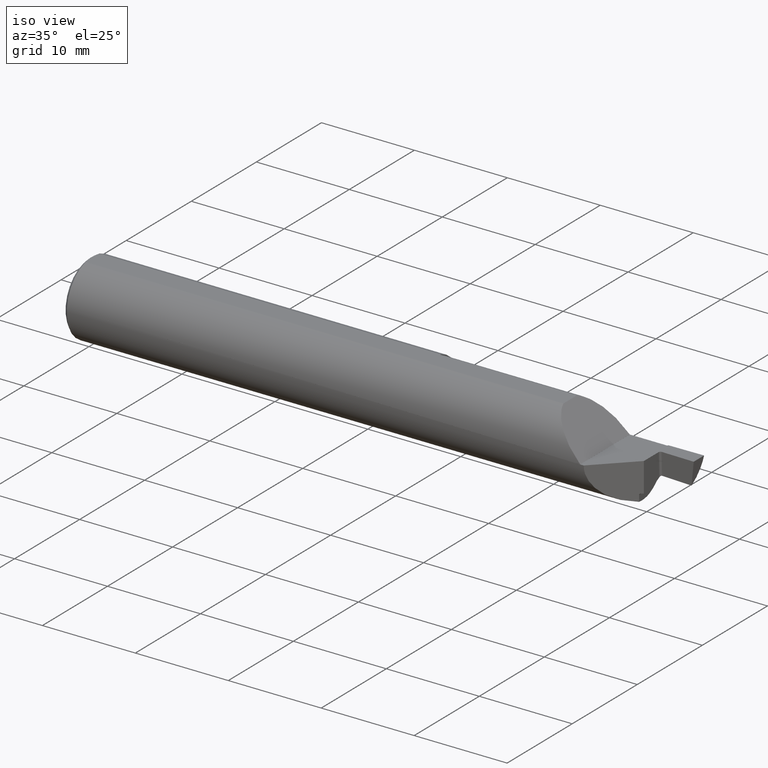
[diagram: clean part render]
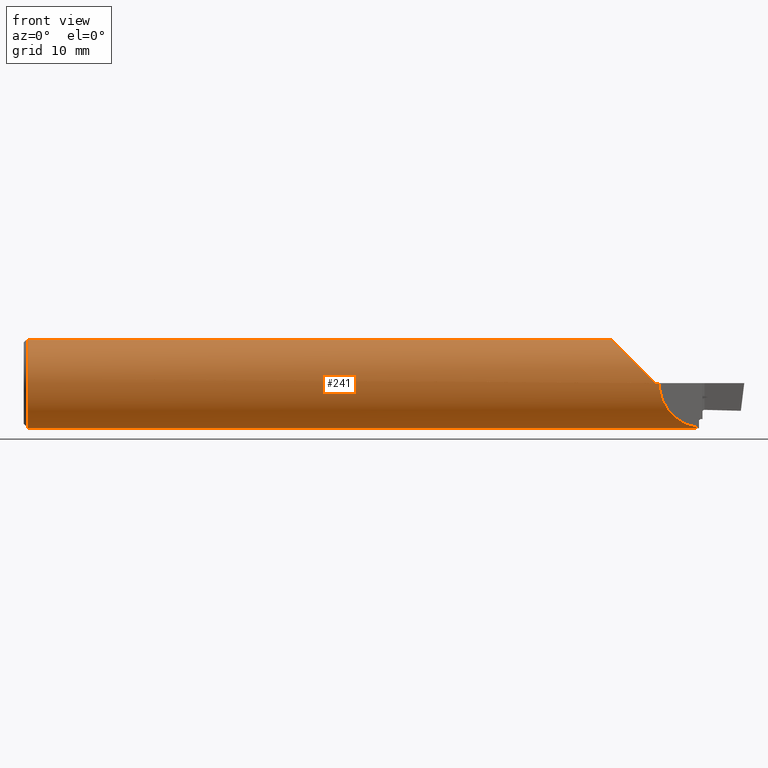
[diagram: tour spotlight — one face highlighted and labeled with its STEP entity id]
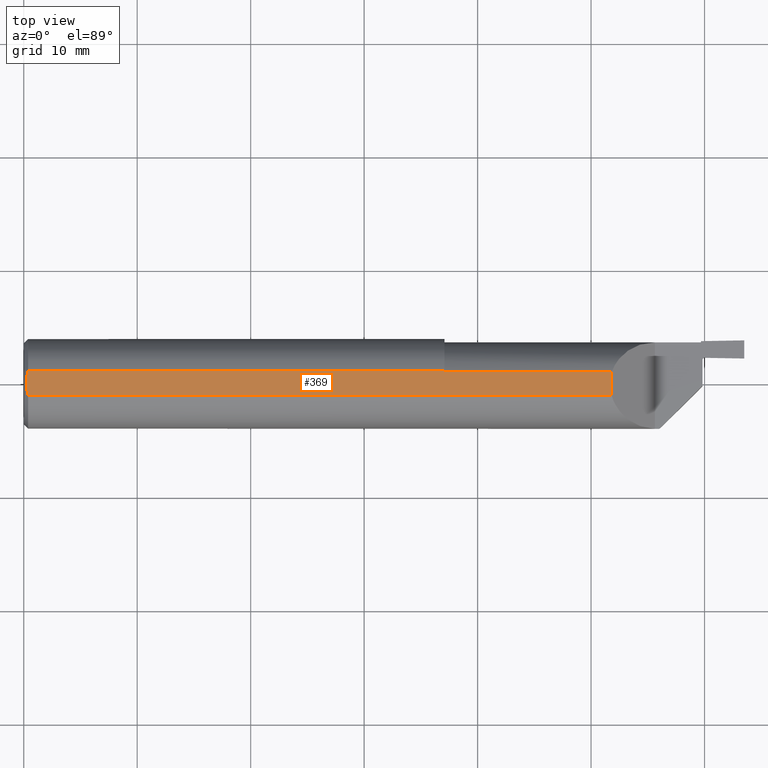
[diagram: tour spotlight — one face highlighted and labeled with its STEP entity id]
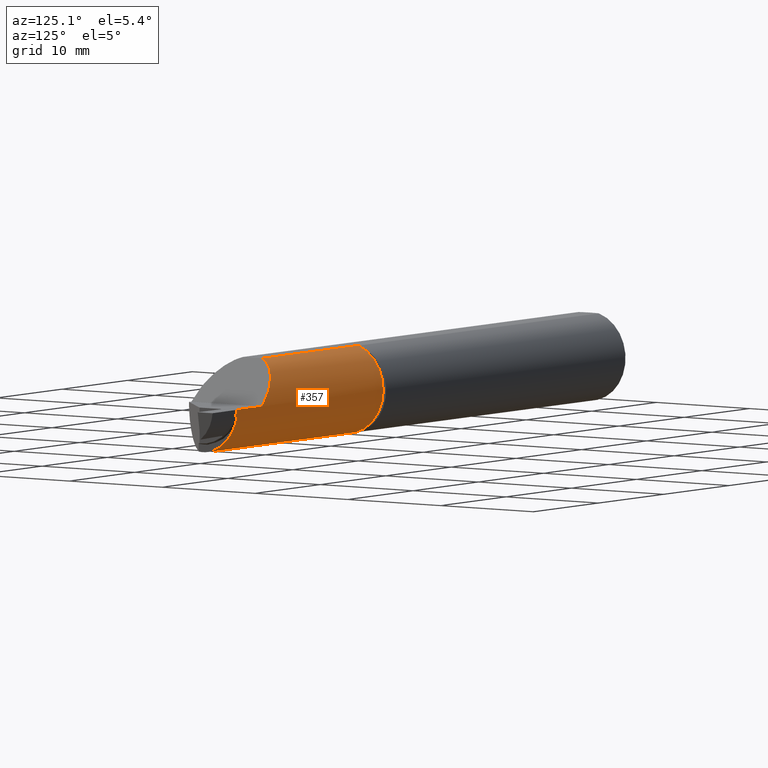
[diagram: tour spotlight — one face highlighted and labeled with its STEP entity id]
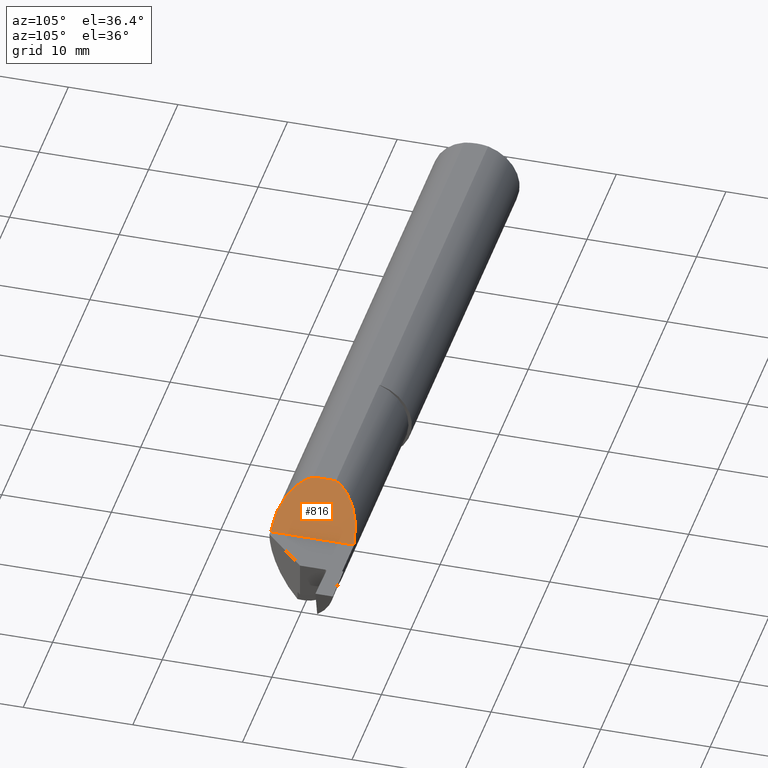
[diagram: tour spotlight — one face highlighted and labeled with its STEP entity id]
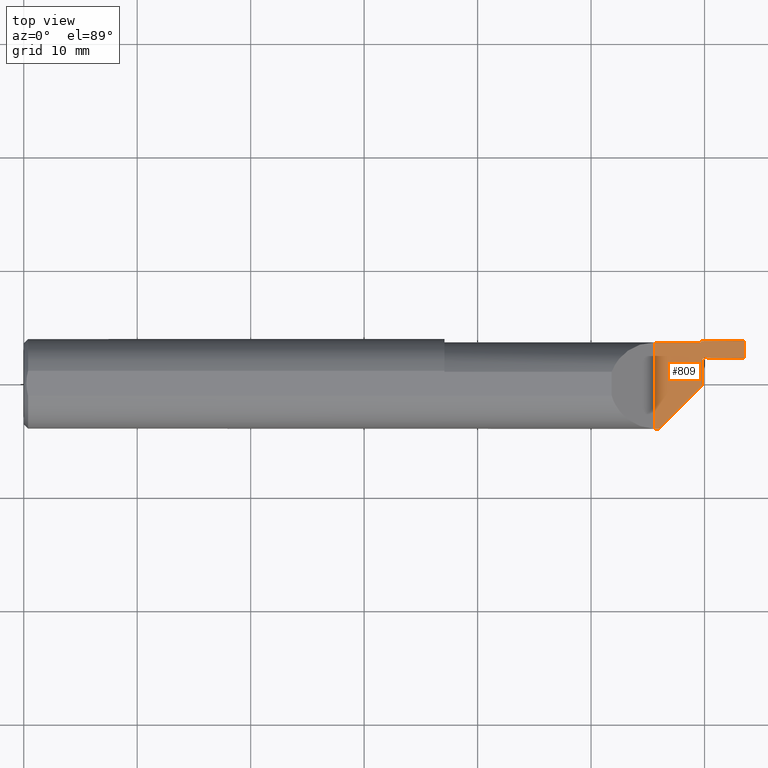
[diagram: tour spotlight — one face highlighted and labeled with its STEP entity id]
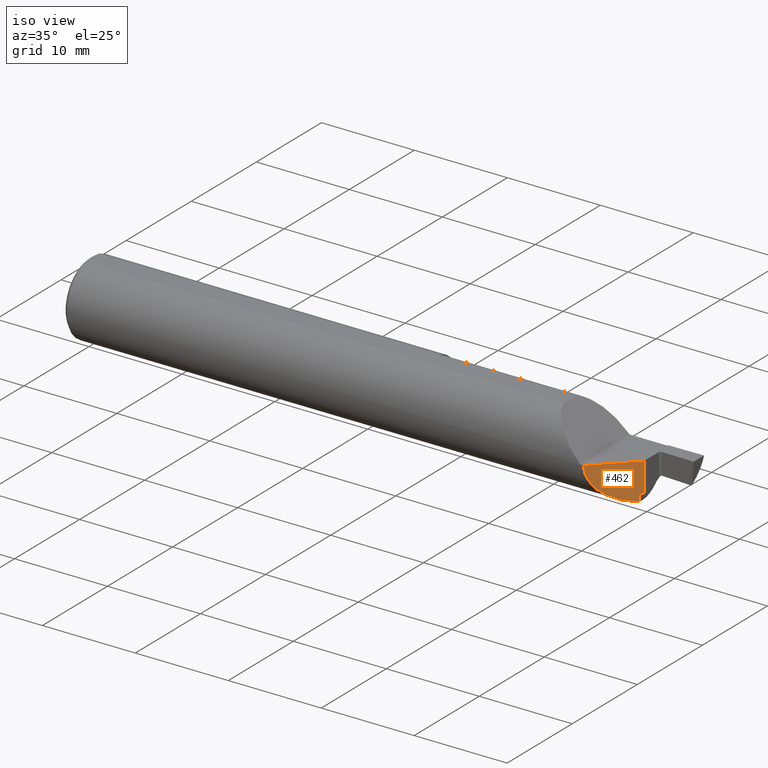
[diagram: tour spotlight — one face highlighted and labeled with its STEP entity id]
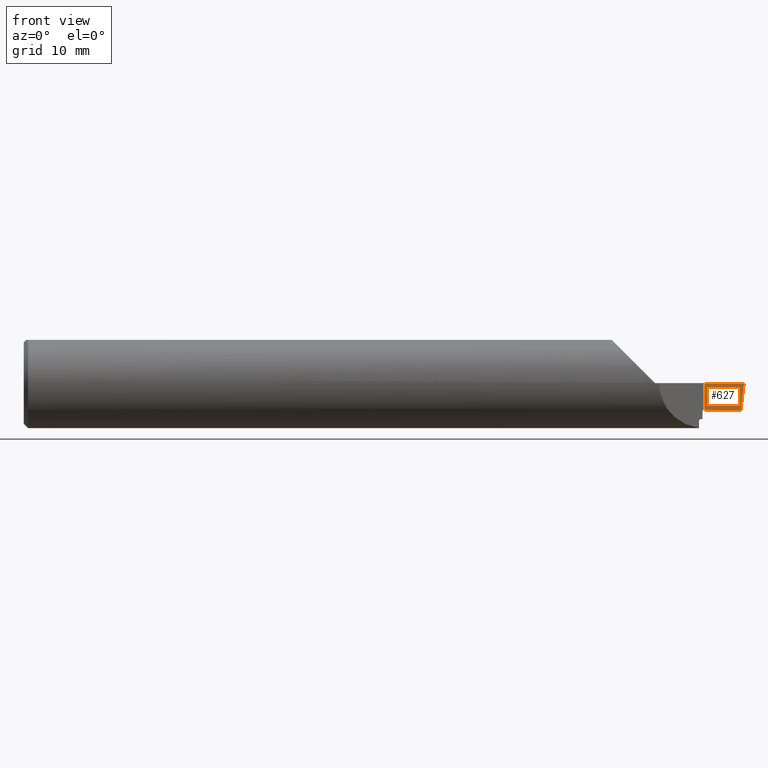
[diagram: tour spotlight — one face highlighted and labeled with its STEP entity id]
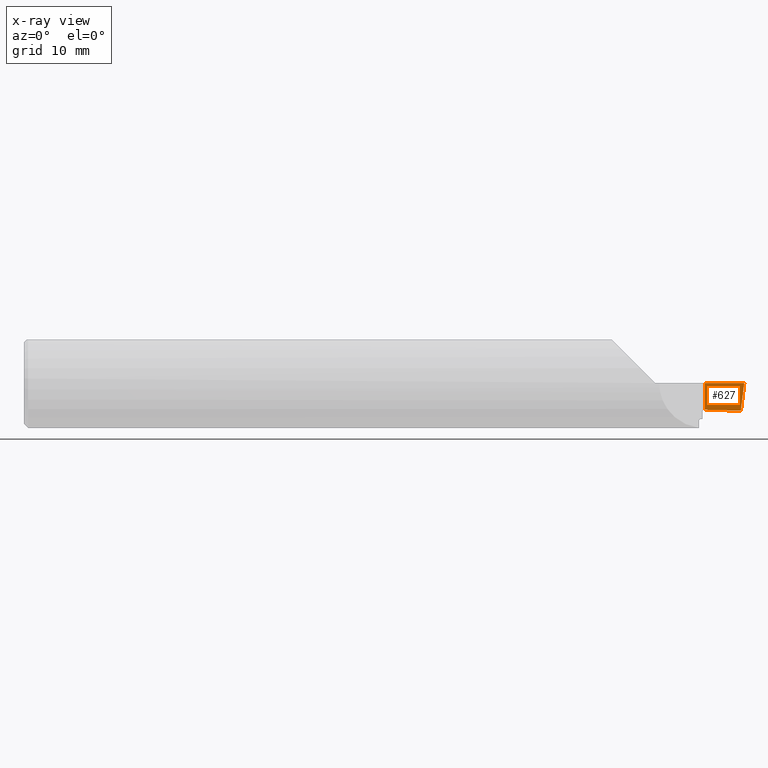
[diagram: x-ray of the same camera — body ghosted, this tour face saturated]
A machine part: a face-by-face anatomy tour. The part has 22 B-rep faces; the first image is the clean iso view, then the 7 largest visible faces are spotlighted one at a time (largest first), each with its STEP entity span.

Face 1 — front view, entity #241. In plain terms, the highlighted cylindrical surface (partial cylindrical patch) has radius 3.9649 mm, axis along (-1, -0, -0).
Definition (entity closure, byte-faithful):
#2 = DIRECTION ( 'NONE',  ( 0.000000000000000000, 0.000000000000000000, -1.000000000000000000 ) ) ;
#14 = ORIENTED_EDGE ( 'NONE', *, *, #764, .T. ) ;
#27 = DIRECTION ( 'NONE',  ( -1.000000000000000000, -0.000000000000000000, -0.000000000000000000 ) ) ;
#29 = VERTEX_POINT ( 'NONE', #250 ) ;
#33 = CARTESIAN_POINT ( 'NONE',  ( 2.342443959369012507, 0.01468936267546636261, -0.1562754114998405885 ) ) ;
#37 = EDGE_CURVE ( 'NONE', #340, #82, #560, .T. ) ;
#43 = CARTESIAN_POINT ( 'NONE',  ( 2.342162489801669967, 0.03081474338877098623, -0.1530283032314129488 ) ) ;
#45 = CARTESIAN_POINT ( 'NONE',  ( 2.343016020190010540, -0.01808397980998952687, -0.1550489589588781580 ) ) ;
#46 = CARTESIAN_POINT ( 'NONE',  ( 0.000000000000000000, 0.04286257108480545641, 0.1500999999999999834 ) ) ;
#58 = VECTOR ( 'NONE', #753, 39.37007874015748143 ) ;
#65 = VERTEX_POINT ( 'NONE', #189 ) ;
#73 = VECTOR ( 'NONE', #274, 39.37007874015748143 ) ;
#82 = VERTEX_POINT ( 'NONE', #308 ) ;
#83 = EDGE_CURVE ( 'NONE', #432, #65, #367, .T. ) ;
#95 = DIRECTION ( 'NONE',  ( 1.000000000000000000, -4.076669232118371430E-17, 0.000000000000000000 ) ) ;
#104 = EDGE_LOOP ( 'NONE', ( #524, #14, #438, #758, #146, #723, #555, #162, #290, #701, #200 ) ) ;
#115 = CARTESIAN_POINT ( 'NONE',  ( 0.01499999999999970281, 0.000000000000000000, -0.1560999999999999888 ) ) ;
#128 = CARTESIAN_POINT ( 'NONE',  ( 2.189999999999999947, -0.1560999679692472164, 9.999999999982123341E-05 ) ) ;
#144 = VECTOR ( 'NONE', #687, 39.37007874015748143 ) ;
#146 = ORIENTED_EDGE ( 'NONE', *, *, #83, .F. ) ;
#150 = EDGE_CURVE ( 'NONE', #29, #660, #155, .T. ) ;
#152 = CARTESIAN_POINT ( 'NONE',  ( 2.343016020190010540, -0.01808397980998952687, -0.1550489589588781580 ) ) ;
#155 = CIRCLE ( 'NONE', #811, 0.1560999999999999888 ) ;
#162 = ORIENTED_EDGE ( 'NONE', *, *, #286, .T. ) ;
#172 = CARTESIAN_POINT ( 'NONE',  ( 2.342162489801669967, 0.03081474338877098623, -0.1530283032314129488 ) ) ;
#189 = CARTESIAN_POINT ( 'NONE',  ( 2.189999999999999947, -0.1560999999999999888, 0.000000000000000000 ) ) ;
#192 = AXIS2_PLACEMENT_3D ( 'NONE', #577, #761, #435 ) ;
#200 = ORIENTED_EDGE ( 'NONE', *, *, #150, .F. ) ;
#203 = CARTESIAN_POINT ( 'NONE',  ( 2.260341737083758851, -0.1007582629162410287, -0.1454063268732586067 ) ) ;
#209 = VERTEX_POINT ( 'NONE', #332 ) ;
#213 = EDGE_CURVE ( 'NONE', #333, #514, #412, .T. ) ;
#220 = DIRECTION ( 'NONE',  ( 0.000000000000000000, 0.000000000000000000, 1.000000000000000000 ) ) ;
#236 = CARTESIAN_POINT ( 'NONE',  ( 2.117630523791210084, -0.1560536069884282118, 0.07246947620879010121 ) ) ;
#241 = ADVANCED_FACE ( 'NONE', ( #728 ), #343, .T. ) ;
#243 = VERTEX_POINT ( 'NONE', #543 ) ;
#250 = CARTESIAN_POINT ( 'NONE',  ( 1.460000000000000187, 0.03081474338883832820, -0.1530283032313958513 ) ) ;
#251 = EDGE_CURVE ( 'NONE', #82, #660, #418, .T. ) ;
#270 = CARTESIAN_POINT ( 'NONE',  ( 2.204999999999999627, -0.1560999999999999888, 0.000000000000000000 ) ) ;
#274 = DIRECTION ( 'NONE',  ( -1.000000000000000000, -0.000000000000000000, -0.000000000000000000 ) ) ;
#281 = VERTEX_POINT ( 'NONE', #43 ) ;
#286 = EDGE_CURVE ( 'NONE', #209, #340, #750, .T. ) ;
#290 = ORIENTED_EDGE ( 'NONE', *, *, #37, .T. ) ;
#298 = DIRECTION ( 'NONE',  ( 0.000000000000000000, 0.000000000000000000, -1.000000000000000000 ) ) ;
#308 = CARTESIAN_POINT ( 'NONE',  ( 0.01499999999999970281, 0.04286257108480545641, 0.1500999999999999834 ) ) ;
#332 = CARTESIAN_POINT ( 'NONE',  ( 0.01499999999999953107, -0.04286257108480568540, 0.1500999999999999834 ) ) ;
#333 = VERTEX_POINT ( 'NONE', #676 ) ;
#335 = CARTESIAN_POINT ( 'NONE',  ( 1.460000000000000187, 0.04286257108480545641, 0.1500999999999999834 ) ) ;
#340 = VERTEX_POINT ( 'NONE', #115 ) ;
#343 = CYLINDRICAL_SURFACE ( 'NONE', #785, 0.1560999999999999888 ) ;
#347 = DIRECTION ( 'NONE',  ( 0.000000000000000000, 1.000000000000000000, 0.000000000000000000 ) ) ;
#359 = DIRECTION ( 'NONE',  ( 1.000000000000000000, 0.000000000000000000, 0.000000000000000000 ) ) ;
#363 = CARTESIAN_POINT ( 'NONE',  ( 2.189999999999999947, -0.1560999679692472164, 9.999999999982123341E-05 ) ) ;
#367 = CIRCLE ( 'NONE', #705, 0.1560999999999999888 ) ;
#381 = EDGE_CURVE ( 'NONE', #432, #243, #670, .T. ) ;
#382 = LINE ( 'NONE', #709, #775 ) ;
#393 = AXIS2_PLACEMENT_3D ( 'NONE', #491, #359, #298 ) ;
#412 =( BOUNDED_CURVE ( )  B_SPLINE_CURVE ( 3, ( #152, #203, #786, #461 ),
 .UNSPECIFIED., .F., .F. ) 
 B_SPLINE_CURVE_WITH_KNOTS ( ( 4, 4 ),
 ( 4.828498376150184512, 6.283185307179586232 ),
 .UNSPECIFIED. ) 
 CURVE ( )  GEOMETRIC_REPRESENTATION_ITEM ( )  RATIONAL_B_SPLINE_CURVE ( ( 1.000000000000000000, 0.8312955553546947929, 0.8312955553546947929, 1.000000000000000000 ) ) 
 REPRESENTATION_ITEM ( '' )  );
#418 = LINE ( 'NONE', #46, #58 ) ;
#432 = VERTEX_POINT ( 'NONE', #128 ) ;
#434 = EDGE_CURVE ( 'NONE', #281, #29, #382, .T. ) ;
#435 = DIRECTION ( 'NONE',  ( 0.000000000000000000, 0.000000000000000000, -1.000000000000000000 ) ) ;
#438 = ORIENTED_EDGE ( 'NONE', *, *, #213, .T. ) ;
#461 = CARTESIAN_POINT ( 'NONE',  ( 2.204999999999999627, -0.1560999999999999888, 0.000000000000000000 ) ) ;
#491 = CARTESIAN_POINT ( 'NONE',  ( 0.01499999999999970281, 0.000000000000000000, 0.000000000000000000 ) ) ;
#514 = VERTEX_POINT ( 'NONE', #270 ) ;
#524 = ORIENTED_EDGE ( 'NONE', *, *, #434, .F. ) ;
#526 = EDGE_CURVE ( 'NONE', #243, #209, #789, .T. ) ;
#539 = CARTESIAN_POINT ( 'NONE',  ( 0.000000000000000000, -0.04286257108480545641, 0.1500999999999999834 ) ) ;
#543 = CARTESIAN_POINT ( 'NONE',  ( 2.039999999999999591, -0.04286257108480545641, 0.1500999999999999834 ) ) ;
#555 = ORIENTED_EDGE ( 'NONE', *, *, #526, .T. ) ;
#560 = CIRCLE ( 'NONE', #192, 0.1560999999999999888 ) ;
#566 = CARTESIAN_POINT ( 'NONE',  ( 2.059871508359184311, -0.1124504032942231085, 0.1302284916408148197 ) ) ;
#569 = DIRECTION ( 'NONE',  ( 1.000000000000000000, 0.000000000000000000, -0.000000000000000000 ) ) ;
#577 = CARTESIAN_POINT ( 'NONE',  ( 0.01499999999999970281, 0.000000000000000000, 0.000000000000000000 ) ) ;
#604 = CARTESIAN_POINT ( 'NONE',  ( 0.000000000000000000, 0.000000000000000000, 0.000000000000000000 ) ) ;
#612 = CARTESIAN_POINT ( 'NONE',  ( 0.000000000000000000, -0.1560999999999999888, 0.000000000000000000 ) ) ;
#629 =( BOUNDED_CURVE ( )  B_SPLINE_CURVE ( 3, ( #172, #33, #683, #45 ),
 .UNSPECIFIED., .F., .F. ) 
 B_SPLINE_CURVE_WITH_KNOTS ( ( 4, 4 ),
 ( 1.372087361718560494, 1.686905722560392729 ),
 .UNSPECIFIED. ) 
 CURVE ( )  GEOMETRIC_REPRESENTATION_ITEM ( )  RATIONAL_B_SPLINE_CURVE ( ( 1.000000000000000000, 0.9917578228927418360, 0.9917578228927418360, 1.000000000000000000 ) ) 
 REPRESENTATION_ITEM ( '' )  );
#633 = CARTESIAN_POINT ( 'NONE',  ( 2.039999999999999591, -0.04286257108480545641, 0.1500999999999999834 ) ) ;
#652 = CARTESIAN_POINT ( 'NONE',  ( 2.189999999999999947, 0.000000000000000000, 0.000000000000000000 ) ) ;
#660 = VERTEX_POINT ( 'NONE', #335 ) ;
#670 =( BOUNDED_CURVE ( )  B_SPLINE_CURVE ( 3, ( #363, #236, #566, #633 ),
 .UNSPECIFIED., .F., .F. ) 
 B_SPLINE_CURVE_WITH_KNOTS ( ( 4, 4 ),
 ( 4.713029595418896101, 6.005028202575334539 ),
 .UNSPECIFIED. ) 
 CURVE ( )  GEOMETRIC_REPRESENTATION_ITEM ( )  RATIONAL_B_SPLINE_CURVE ( ( 1.000000000000000000, 0.8656657255323875200, 0.8656657255323875200, 1.000000000000000000 ) ) 
 REPRESENTATION_ITEM ( '' )  );
#676 = CARTESIAN_POINT ( 'NONE',  ( 2.343016020190010540, -0.01808397980998952687, -0.1550489589588781580 ) ) ;
#683 = CARTESIAN_POINT ( 'NONE',  ( 2.342730833969725701, -0.001745672192264038653, -0.1569545610801197644 ) ) ;
#687 = DIRECTION ( 'NONE',  ( -1.000000000000000000, -0.000000000000000000, -0.000000000000000000 ) ) ;
#694 = DIRECTION ( 'NONE',  ( -1.000000000000000000, 4.076669232118371430E-17, -0.000000000000000000 ) ) ;
#701 = ORIENTED_EDGE ( 'NONE', *, *, #251, .T. ) ;
#705 = AXIS2_PLACEMENT_3D ( 'NONE', #652, #569, #2 ) ;
#709 = CARTESIAN_POINT ( 'NONE',  ( 1.903499999999999970, 0.03081474338883930311, -0.1530283032313956570 ) ) ;
#723 = ORIENTED_EDGE ( 'NONE', *, *, #381, .T. ) ;
#728 = FACE_OUTER_BOUND ( 'NONE', #104, .T. ) ;
#733 = CARTESIAN_POINT ( 'NONE',  ( 1.460000000000000187, 0.000000000000000000, 0.000000000000000000 ) ) ;
#750 = CIRCLE ( 'NONE', #393, 0.1560999999999999888 ) ;
#753 = DIRECTION ( 'NONE',  ( 1.000000000000000000, 0.000000000000000000, 0.000000000000000000 ) ) ;
#755 = EDGE_CURVE ( 'NONE', #514, #65, #807, .T. ) ;
#758 = ORIENTED_EDGE ( 'NONE', *, *, #755, .T. ) ;
#761 = DIRECTION ( 'NONE',  ( 1.000000000000000000, 0.000000000000000000, 0.000000000000000000 ) ) ;
#764 = EDGE_CURVE ( 'NONE', #281, #333, #629, .T. ) ;
#775 = VECTOR ( 'NONE', #694, 39.37007874015748143 ) ;
#785 = AXIS2_PLACEMENT_3D ( 'NONE', #604, #27, #220 ) ;
#786 = CARTESIAN_POINT ( 'NONE',  ( 2.204999999999999183, -0.1560999999999999888, -0.08323471295482000321 ) ) ;
#789 = LINE ( 'NONE', #539, #73 ) ;
#807 = LINE ( 'NONE', #612, #144 ) ;
#811 = AXIS2_PLACEMENT_3D ( 'NONE', #733, #95, #347 ) ;

Face 2 — top view, entity #369. In plain terms, the highlighted planar face has unit normal (0, 0, -1).
Definition (entity closure, byte-faithful):
#9 = ORIENTED_EDGE ( 'NONE', *, *, #616, .T. ) ;
#11 = EDGE_CURVE ( 'NONE', #82, #506, #774, .T. ) ;
#12 = CARTESIAN_POINT ( 'NONE',  ( 1.460000000000000187, -0.2561000000000000498, 0.1500999999999999834 ) ) ;
#26 = DIRECTION ( 'NONE',  ( -0.000000000000000000, 1.000000000000000000, 0.000000000000000000 ) ) ;
#34 = CARTESIAN_POINT ( 'NONE',  ( 0.01156122974740472244, -0.02873113156979012484, 0.1500999999999999279 ) ) ;
#46 = CARTESIAN_POINT ( 'NONE',  ( 0.000000000000000000, 0.04286257108480545641, 0.1500999999999999834 ) ) ;
#58 = VECTOR ( 'NONE', #753, 39.37007874015748143 ) ;
#73 = VECTOR ( 'NONE', #274, 39.37007874015748143 ) ;
#82 = VERTEX_POINT ( 'NONE', #308 ) ;
#96 = ORIENTED_EDGE ( 'NONE', *, *, #11, .T. ) ;
#112 = DIRECTION ( 'NONE',  ( 0.000000000000000000, 0.000000000000000000, -1.000000000000000000 ) ) ;
#122 = CARTESIAN_POINT ( 'NONE',  ( 0.01499999999999970281, 0.04286257108480545641, 0.1500999999999999834 ) ) ;
#123 = ORIENTED_EDGE ( 'NONE', *, *, #526, .F. ) ;
#132 = B_SPLINE_CURVE_WITH_KNOTS ( 'NONE', 3,
 ( #177, #747, #164, #34, #225, #496 ),
 .UNSPECIFIED., .F., .F.,
 ( 4, 2, 4 ),
 ( 0.004962684357525391429, 0.005507153342650035824, 0.006051622327774681086 ),
 .UNSPECIFIED. ) ;
#151 = LINE ( 'NONE', #467, #812 ) ;
#160 = FACE_OUTER_BOUND ( 'NONE', #255, .T. ) ;
#164 = CARTESIAN_POINT ( 'NONE',  ( 0.009526811708237869006, -0.01443825677426632814, 0.1500999999999999834 ) ) ;
#168 = LINE ( 'NONE', #797, #477 ) ;
#173 = DIRECTION ( 'NONE',  ( -1.000000000000000000, 0.000000000000000000, -0.000000000000000000 ) ) ;
#177 = CARTESIAN_POINT ( 'NONE',  ( 0.008999999999998765932, 6.845491512164019265E-17, 0.1500999999999999834 ) ) ;
#181 = VECTOR ( 'NONE', #603, 39.37007874015748143 ) ;
#209 = VERTEX_POINT ( 'NONE', #332 ) ;
#214 = LINE ( 'NONE', #12, #181 ) ;
#225 = CARTESIAN_POINT ( 'NONE',  ( 0.01308010236197408062, -0.03587054952121924989, 0.1500999999999999834 ) ) ;
#243 = VERTEX_POINT ( 'NONE', #543 ) ;
#244 = ORIENTED_EDGE ( 'NONE', *, *, #277, .T. ) ;
#251 = EDGE_CURVE ( 'NONE', #82, #660, #418, .T. ) ;
#254 = CARTESIAN_POINT ( 'NONE',  ( 0.008999999999998765932, 6.845491512164019265E-17, 0.1500999999999999834 ) ) ;
#255 = EDGE_LOOP ( 'NONE', ( #794, #411, #551, #96, #244, #123, #9 ) ) ;
#266 = CARTESIAN_POINT ( 'NONE',  ( 2.039999999999999591, 0.03950672882812752973, 0.1500999999999999834 ) ) ;
#274 = DIRECTION ( 'NONE',  ( -1.000000000000000000, -0.000000000000000000, -0.000000000000000000 ) ) ;
#277 = EDGE_CURVE ( 'NONE', #506, #209, #132, .T. ) ;
#308 = CARTESIAN_POINT ( 'NONE',  ( 0.01499999999999970281, 0.04286257108480545641, 0.1500999999999999834 ) ) ;
#329 = AXIS2_PLACEMENT_3D ( 'NONE', #740, #112, #173 ) ;
#332 = CARTESIAN_POINT ( 'NONE',  ( 0.01499999999999953107, -0.04286257108480568540, 0.1500999999999999834 ) ) ;
#335 = CARTESIAN_POINT ( 'NONE',  ( 1.460000000000000187, 0.04286257108480545641, 0.1500999999999999834 ) ) ;
#362 = EDGE_CURVE ( 'NONE', #374, #578, #168, .T. ) ;
#369 = ADVANCED_FACE ( 'NONE', ( #160 ), #557, .F. ) ;
#374 = VERTEX_POINT ( 'NONE', #808 ) ;
#376 = CARTESIAN_POINT ( 'NONE',  ( 0.008999999999999475433, 0.007249779851909447098, 0.1500999999999999834 ) ) ;
#411 = ORIENTED_EDGE ( 'NONE', *, *, #553, .F. ) ;
#418 = LINE ( 'NONE', #46, #58 ) ;
#446 = CARTESIAN_POINT ( 'NONE',  ( 0.01308967235647840940, 0.03590540221680477151, 0.1500999999999999834 ) ) ;
#451 = CARTESIAN_POINT ( 'NONE',  ( 0.008999999999998765932, 6.845491512164019265E-17, 0.1500999999999999834 ) ) ;
#467 = CARTESIAN_POINT ( 'NONE',  ( 2.039999999999999591, 0.04286257108480545641, 0.1500999999999999834 ) ) ;
#477 = VECTOR ( 'NONE', #802, 39.37007874015748143 ) ;
#496 = CARTESIAN_POINT ( 'NONE',  ( 0.01499999999999953107, -0.04286257108480568540, 0.1500999999999999834 ) ) ;
#501 = CARTESIAN_POINT ( 'NONE',  ( 0.01158539406439744110, 0.02885992225672986272, 0.1500999999999999834 ) ) ;
#506 = VERTEX_POINT ( 'NONE', #451 ) ;
#526 = EDGE_CURVE ( 'NONE', #243, #209, #789, .T. ) ;
#539 = CARTESIAN_POINT ( 'NONE',  ( 0.000000000000000000, -0.04286257108480545641, 0.1500999999999999834 ) ) ;
#543 = CARTESIAN_POINT ( 'NONE',  ( 2.039999999999999591, -0.04286257108480545641, 0.1500999999999999834 ) ) ;
#551 = ORIENTED_EDGE ( 'NONE', *, *, #251, .F. ) ;
#553 = EDGE_CURVE ( 'NONE', #660, #374, #214, .T. ) ;
#557 = PLANE ( 'NONE',  #329 ) ;
#578 = VERTEX_POINT ( 'NONE', #266 ) ;
#603 = DIRECTION ( 'NONE',  ( -4.076669232118371430E-17, -1.000000000000000000, 0.000000000000000000 ) ) ;
#616 = EDGE_CURVE ( 'NONE', #243, #578, #151, .T. ) ;
#660 = VERTEX_POINT ( 'NONE', #335 ) ;
#740 = CARTESIAN_POINT ( 'NONE',  ( 0.000000000000000000, -0.2560999999999999943, 0.1500999999999999834 ) ) ;
#747 = CARTESIAN_POINT ( 'NONE',  ( 0.008999999999999465025, -0.007244529225202475144, 0.1500999999999999834 ) ) ;
#753 = DIRECTION ( 'NONE',  ( 1.000000000000000000, 0.000000000000000000, 0.000000000000000000 ) ) ;
#774 = B_SPLINE_CURVE_WITH_KNOTS ( 'NONE', 3,
 ( #122, #446, #501, #821, #376, #254 ),
 .UNSPECIFIED., .F., .F.,
 ( 4, 2, 4 ),
 ( 0.003872957156311482643, 0.004417820756918437036, 0.004962684357525391429 ),
 .UNSPECIFIED. ) ;
#789 = LINE ( 'NONE', #539, #73 ) ;
#794 = ORIENTED_EDGE ( 'NONE', *, *, #362, .F. ) ;
#797 = CARTESIAN_POINT ( 'NONE',  ( 1.460000000000000187, 0.03950672882812778647, 0.1500999999999999834 ) ) ;
#802 = DIRECTION ( 'NONE',  ( 1.000000000000000000, -4.076669232118371430E-17, 0.000000000000000000 ) ) ;
#808 = CARTESIAN_POINT ( 'NONE',  ( 1.460000000000000187, 0.03950672882812750197, 0.1500999999999999834 ) ) ;
#812 = VECTOR ( 'NONE', #26, 39.37007874015748143 ) ;
#821 = CARTESIAN_POINT ( 'NONE',  ( 0.009538385840405057964, 0.01455983656044575192, 0.1500999999999999279 ) ) ;

Face 3 — auxiliary view, entity #357. In plain terms, the highlighted cylindrical surface (partial cylindrical patch) has radius 4.064 mm, axis along (-1, 0, -0).
Definition (entity closure, byte-faithful):
#1 = CARTESIAN_POINT ( 'NONE',  ( 2.189999999999999947, 0.1440992383597802795, 0.000000000000000000 ) ) ;
#6 = AXIS2_PLACEMENT_3D ( 'NONE', #680, #561, #814 ) ;
#17 = CARTESIAN_POINT ( 'NONE',  ( 2.342162489801669967, 0.03081474338877098623, -0.1530283032314129488 ) ) ;
#29 = VERTEX_POINT ( 'NONE', #250 ) ;
#40 = ORIENTED_EDGE ( 'NONE', *, *, #79, .F. ) ;
#43 = CARTESIAN_POINT ( 'NONE',  ( 2.342162489801669967, 0.03081474338877098623, -0.1530283032314129488 ) ) ;
#53 = CARTESIAN_POINT ( 'NONE',  ( 2.039999999999999591, 0.03950672882812752973, 0.1500999999999999834 ) ) ;
#54 = ORIENTED_EDGE ( 'NONE', *, *, #362, .T. ) ;
#69 = CARTESIAN_POINT ( 'NONE',  ( 2.189999999999999947, 0.1440992071097771665, 9.999999999993541345E-05 ) ) ;
#79 = EDGE_CURVE ( 'NONE', #741, #578, #325, .T. ) ;
#102 = CYLINDRICAL_SURFACE ( 'NONE', #668, 0.1600000000000000588 ) ;
#117 = EDGE_LOOP ( 'NONE', ( #54, #40, #364, #715, #153, #678, #628, #529, #663, #783 ) ) ;
#120 = DIRECTION ( 'NONE',  ( 0.000000000000000000, -1.000000000000000000, 0.000000000000000000 ) ) ;
#127 = EDGE_CURVE ( 'NONE', #374, #29, #572, .T. ) ;
#153 = ORIENTED_EDGE ( 'NONE', *, *, #498, .T. ) ;
#156 = DIRECTION ( 'NONE',  ( 0.000000000000000000, -1.000000000000000000, 0.000000000000000000 ) ) ;
#168 = LINE ( 'NONE', #797, #477 ) ;
#182 = CARTESIAN_POINT ( 'NONE',  ( 2.340324171265558029, 0.1361319417878201210, -0.04986037593482096908 ) ) ;
#204 = VERTEX_POINT ( 'NONE', #530 ) ;
#219 = AXIS2_PLACEMENT_3D ( 'NONE', #516, #825, #120 ) ;
#231 = VECTOR ( 'NONE', #355, 39.37007874015748143 ) ;
#239 = CARTESIAN_POINT ( 'NONE',  ( 2.344620239223516034, 0.1423154475645168338, -0.02382507295451149684 ) ) ;
#249 = CARTESIAN_POINT ( 'NONE',  ( 2.341229560585753600, 0.1404129330932531172, -0.03422624432314345932 ) ) ;
#250 = CARTESIAN_POINT ( 'NONE',  ( 1.460000000000000187, 0.03081474338883832820, -0.1530283032313958513 ) ) ;
#266 = CARTESIAN_POINT ( 'NONE',  ( 2.039999999999999591, 0.03950672882812752973, 0.1500999999999999834 ) ) ;
#278 = VERTEX_POINT ( 'NONE', #292 ) ;
#280 = DIRECTION ( 'NONE',  ( -1.000000000000000000, 4.076669232118371430E-17, -0.000000000000000000 ) ) ;
#281 = VERTEX_POINT ( 'NONE', #43 ) ;
#284 = CARTESIAN_POINT ( 'NONE',  ( 2.346999999999999975, 0.1440992383597803350, 0.000000000000000000 ) ) ;
#292 = CARTESIAN_POINT ( 'NONE',  ( 2.346999999999999975, 0.1422830262889950570, -0.02403932687005251589 ) ) ;
#307 = CARTESIAN_POINT ( 'NONE',  ( 2.344147063284117927, 0.1422359684611269048, -0.02435196038416492792 ) ) ;
#310 = EDGE_CURVE ( 'NONE', #476, #368, #480, .T. ) ;
#311 = CARTESIAN_POINT ( 'NONE',  ( 2.341557387653868894, 0.1408919795844052469, -0.03195653890240501838 ) ) ;
#324 = CARTESIAN_POINT ( 'NONE',  ( 2.346405711171946518, 0.1422911514515489140, -0.02398586160482895149 ) ) ;
#325 =( BOUNDED_CURVE ( )  B_SPLINE_CURVE ( 3, ( #69, #372, #636, #53 ),
 .UNSPECIFIED., .F., .T. ) 
 B_SPLINE_CURVE_WITH_KNOTS ( ( 4, 4 ),
 ( 4.713013980425380112, 5.929564525929065688 ),
 .UNSPECIFIED. ) 
 CURVE ( )  GEOMETRIC_REPRESENTATION_ITEM ( )  RATIONAL_B_SPLINE_CURVE ( ( 1.000000000000000000, 0.8804232255846621280, 0.8804232255846621280, 1.000000000000000000 ) ) 
 REPRESENTATION_ITEM ( '' )  );
#342 = CARTESIAN_POINT ( 'NONE',  ( 2.345811424855440031, 0.1422992536565041988, -0.02393236491957658266 ) ) ;
#348 = EDGE_CURVE ( 'NONE', #476, #741, #447, .T. ) ;
#355 = DIRECTION ( 'NONE',  ( 1.000000000000000000, -4.076669232118371430E-17, 0.000000000000000000 ) ) ;
#357 = ADVANCED_FACE ( 'NONE', ( #422 ), #102, .T. ) ;
#362 = EDGE_CURVE ( 'NONE', #374, #578, #168, .T. ) ;
#364 = ORIENTED_EDGE ( 'NONE', *, *, #348, .F. ) ;
#366 = CARTESIAN_POINT ( 'NONE',  ( 1.460000000000000187, -0.01590076164021977240, 0.000000000000000000 ) ) ;
#368 = VERTEX_POINT ( 'NONE', #284 ) ;
#371 = CARTESIAN_POINT ( 'NONE',  ( 2.343259188411876970, 0.1419971072196290207, -0.02585663773273765356 ) ) ;
#372 = CARTESIAN_POINT ( 'NONE',  ( 2.120766287695780239, 0.1440559360311357284, 0.06933371230421984943 ) ) ;
#374 = VERTEX_POINT ( 'NONE', #808 ) ;
#375 = CARTESIAN_POINT ( 'NONE',  ( 2.342621842553842093, 0.1417247722290986001, -0.02748457555991144427 ) ) ;
#382 = LINE ( 'NONE', #709, #775 ) ;
#386 = CARTESIAN_POINT ( 'NONE',  ( 2.340613147599766908, 0.1195764986887746517, -0.1003407167587094390 ) ) ;
#403 = CARTESIAN_POINT ( 'NONE',  ( 2.346999999999999975, 0.1422830262889950570, -0.02403932687005251589 ) ) ;
#422 = FACE_OUTER_BOUND ( 'NONE', #117, .T. ) ;
#424 = EDGE_CURVE ( 'NONE', #204, #583, #737, .T. ) ;
#425 = CARTESIAN_POINT ( 'NONE',  ( 2.189999999999999947, 0.1440992071097771665, 9.999999999993541345E-05 ) ) ;
#430 = CARTESIAN_POINT ( 'NONE',  ( 1.460000000000000187, 0.1440992383597803073, 0.000000000000000000 ) ) ;
#431 = B_SPLINE_CURVE_WITH_KNOTS ( 'NONE', 3,
 ( #781, #342, #324, #403 ),
 .UNSPECIFIED., .F., .F.,
 ( 4, 4 ),
 ( 1.396728472046255685E-17, 4.547191594213708337E-05 ),
 .UNSPECIFIED. ) ;
#434 = EDGE_CURVE ( 'NONE', #281, #29, #382, .T. ) ;
#447 = CIRCLE ( 'NONE', #6, 0.1600000000000000588 ) ;
#476 = VERTEX_POINT ( 'NONE', #1 ) ;
#477 = VECTOR ( 'NONE', #802, 39.37007874015748143 ) ;
#480 = LINE ( 'NONE', #430, #231 ) ;
#498 = EDGE_CURVE ( 'NONE', #368, #278, #799, .T. ) ;
#507 = CARTESIAN_POINT ( 'NONE',  ( 2.343497931152124902, 0.1420827914429192707, -0.02532667244082963467 ) ) ;
#510 = CARTESIAN_POINT ( 'NONE',  ( 2.342324542002996779, 0.1415263540993609848, -0.02860068617629550267 ) ) ;
#516 = CARTESIAN_POINT ( 'NONE',  ( 2.346999999999999975, -0.01590076164021980709, 0.000000000000000000 ) ) ;
#529 = ORIENTED_EDGE ( 'NONE', *, *, #537, .T. ) ;
#530 = CARTESIAN_POINT ( 'NONE',  ( 2.345217141054445786, 0.1423073328147397842, -0.02387883684207898691 ) ) ;
#535 = CARTESIAN_POINT ( 'NONE',  ( 2.340324171265558029, 0.1361319417878201210, -0.04986037593482096908 ) ) ;
#537 = EDGE_CURVE ( 'NONE', #583, #281, #760, .T. ) ;
#561 = DIRECTION ( 'NONE',  ( 1.000000000000000000, 0.000000000000000000, -0.000000000000000000 ) ) ;
#572 = CIRCLE ( 'NONE', #631, 0.1599999999999999756 ) ;
#578 = VERTEX_POINT ( 'NONE', #266 ) ;
#583 = VERTEX_POINT ( 'NONE', #598 ) ;
#598 = CARTESIAN_POINT ( 'NONE',  ( 2.340324171265558029, 0.1361319417878201210, -0.04986037593482096908 ) ) ;
#610 = EDGE_CURVE ( 'NONE', #204, #278, #431, .T. ) ;
#619 = DIRECTION ( 'NONE',  ( 0.000000000000000000, -1.000000000000000000, 0.000000000000000000 ) ) ;
#628 = ORIENTED_EDGE ( 'NONE', *, *, #424, .T. ) ;
#631 = AXIS2_PLACEMENT_3D ( 'NONE', #793, #280, #156 ) ;
#636 = CARTESIAN_POINT ( 'NONE',  ( 2.063975418773851711, 0.1044566178690503194, 0.1261245812261482802 ) ) ;
#663 = ORIENTED_EDGE ( 'NONE', *, *, #434, .T. ) ;
#668 = AXIS2_PLACEMENT_3D ( 'NONE', #366, #757, #619 ) ;
#678 = ORIENTED_EDGE ( 'NONE', *, *, #610, .F. ) ;
#680 = CARTESIAN_POINT ( 'NONE',  ( 2.189999999999999947, -0.01590076164021980362, 0.000000000000000000 ) ) ;
#694 = DIRECTION ( 'NONE',  ( -1.000000000000000000, 4.076669232118371430E-17, -0.000000000000000000 ) ) ;
#709 = CARTESIAN_POINT ( 'NONE',  ( 1.903499999999999970, 0.03081474338883930311, -0.1530283032313956570 ) ) ;
#715 = ORIENTED_EDGE ( 'NONE', *, *, #310, .T. ) ;
#737 = B_SPLINE_CURVE_WITH_KNOTS ( 'NONE', 3,
 ( #763, #239, #307, #507, #371, #375, #510, #311, #249, #773, #767, #182 ),
 .UNSPECIFIED., .F., .F.,
 ( 4, 2, 2, 2, 2, 4 ),
 ( 7.042162248946672010E-05, 0.0001155863656850456272, 0.0001607511088806245342, 0.0002510805952717820502, 0.0004317395680540918237, 0.0007930575136187109370 ),
 .UNSPECIFIED. ) ;
#741 = VERTEX_POINT ( 'NONE', #425 ) ;
#757 = DIRECTION ( 'NONE',  ( -1.000000000000000000, 4.076669232118371430E-17, -0.000000000000000000 ) ) ;
#760 =( BOUNDED_CURVE ( )  B_SPLINE_CURVE ( 3, ( #535, #386, #792, #17 ),
 .UNSPECIFIED., .F., .F. ) 
 B_SPLINE_CURVE_WITH_KNOTS ( ( 4, 4 ),
 ( 0.3169051836703808411, 1.274508393031518194 ),
 .UNSPECIFIED. ) 
 CURVE ( )  GEOMETRIC_REPRESENTATION_ITEM ( )  RATIONAL_B_SPLINE_CURVE ( ( 1.000000000000000000, 0.9250317864800043921, 0.9250317864800043921, 1.000000000000000000 ) ) 
 REPRESENTATION_ITEM ( '' )  );
#763 = CARTESIAN_POINT ( 'NONE',  ( 2.345217141054445786, 0.1423073328147397842, -0.02387883684207898691 ) ) ;
#767 = CARTESIAN_POINT ( 'NONE',  ( 2.340299059025988448, 0.1375706210314296962, -0.04547360004974333042 ) ) ;
#773 = CARTESIAN_POINT ( 'NONE',  ( 2.340474683116682275, 0.1388219895278443305, -0.04101826566022431092 ) ) ;
#775 = VECTOR ( 'NONE', #694, 39.37007874015748143 ) ;
#781 = CARTESIAN_POINT ( 'NONE',  ( 2.345217141054445786, 0.1423073328147397842, -0.02387883684207898691 ) ) ;
#783 = ORIENTED_EDGE ( 'NONE', *, *, #127, .F. ) ;
#792 = CARTESIAN_POINT ( 'NONE',  ( 2.341275581966160146, 0.08162565925517042964, -0.1375170706975569757 ) ) ;
#793 = CARTESIAN_POINT ( 'NONE',  ( 1.460000000000000187, -0.01590076164021977240, 0.000000000000000000 ) ) ;
#797 = CARTESIAN_POINT ( 'NONE',  ( 1.460000000000000187, 0.03950672882812778647, 0.1500999999999999834 ) ) ;
#799 = CIRCLE ( 'NONE', #219, 0.1600000000000001421 ) ;
#802 = DIRECTION ( 'NONE',  ( 1.000000000000000000, -4.076669232118371430E-17, 0.000000000000000000 ) ) ;
#808 = CARTESIAN_POINT ( 'NONE',  ( 1.460000000000000187, 0.03950672882812750197, 0.1500999999999999834 ) ) ;
#814 = DIRECTION ( 'NONE',  ( 0.000000000000000000, 0.000000000000000000, -1.000000000000000000 ) ) ;
#825 = DIRECTION ( 'NONE',  ( -1.000000000000000000, 4.076669232118371430E-17, -0.000000000000000000 ) ) ;

Face 4 — auxiliary view, entity #816. In plain terms, the highlighted planar face has unit normal (0.7071, -0, 0.7071).
Definition (entity closure, byte-faithful):
#26 = DIRECTION ( 'NONE',  ( -0.000000000000000000, 1.000000000000000000, 0.000000000000000000 ) ) ;
#31 = ORIENTED_EDGE ( 'NONE', *, *, #381, .F. ) ;
#39 = DIRECTION ( 'NONE',  ( 0.000000000000000000, -1.000000000000000000, 0.000000000000000000 ) ) ;
#53 = CARTESIAN_POINT ( 'NONE',  ( 2.039999999999999591, 0.03950672882812752973, 0.1500999999999999834 ) ) ;
#69 = CARTESIAN_POINT ( 'NONE',  ( 2.189999999999999947, 0.1440992071097771665, 9.999999999993541345E-05 ) ) ;
#79 = EDGE_CURVE ( 'NONE', #741, #578, #325, .T. ) ;
#105 = AXIS2_PLACEMENT_3D ( 'NONE', #201, #256, #443 ) ;
#128 = CARTESIAN_POINT ( 'NONE',  ( 2.189999999999999947, -0.1560999679692472164, 9.999999999982123341E-05 ) ) ;
#151 = LINE ( 'NONE', #467, #812 ) ;
#195 = ORIENTED_EDGE ( 'NONE', *, *, #616, .F. ) ;
#201 = CARTESIAN_POINT ( 'NONE',  ( 2.189999999999999947, 0.2560999999999999943, 9.999999999993541345E-05 ) ) ;
#236 = CARTESIAN_POINT ( 'NONE',  ( 2.117630523791210084, -0.1560536069884282118, 0.07246947620879010121 ) ) ;
#243 = VERTEX_POINT ( 'NONE', #543 ) ;
#256 = DIRECTION ( 'NONE',  ( 0.7071067811865462405, -0.000000000000000000, 0.7071067811865487940 ) ) ;
#257 = EDGE_CURVE ( 'NONE', #741, #432, #613, .T. ) ;
#266 = CARTESIAN_POINT ( 'NONE',  ( 2.039999999999999591, 0.03950672882812752973, 0.1500999999999999834 ) ) ;
#289 = CARTESIAN_POINT ( 'NONE',  ( 2.189999999999999947, -0.04286257108480570621, 9.999999999993541345E-05 ) ) ;
#300 = ORIENTED_EDGE ( 'NONE', *, *, #79, .T. ) ;
#325 =( BOUNDED_CURVE ( )  B_SPLINE_CURVE ( 3, ( #69, #372, #636, #53 ),
 .UNSPECIFIED., .F., .T. ) 
 B_SPLINE_CURVE_WITH_KNOTS ( ( 4, 4 ),
 ( 4.713013980425380112, 5.929564525929065688 ),
 .UNSPECIFIED. ) 
 CURVE ( )  GEOMETRIC_REPRESENTATION_ITEM ( )  RATIONAL_B_SPLINE_CURVE ( ( 1.000000000000000000, 0.8804232255846621280, 0.8804232255846621280, 1.000000000000000000 ) ) 
 REPRESENTATION_ITEM ( '' )  );
#363 = CARTESIAN_POINT ( 'NONE',  ( 2.189999999999999947, -0.1560999679692472164, 9.999999999982123341E-05 ) ) ;
#372 = CARTESIAN_POINT ( 'NONE',  ( 2.120766287695780239, 0.1440559360311357284, 0.06933371230421984943 ) ) ;
#379 = PLANE ( 'NONE',  #105 ) ;
#381 = EDGE_CURVE ( 'NONE', #432, #243, #670, .T. ) ;
#425 = CARTESIAN_POINT ( 'NONE',  ( 2.189999999999999947, 0.1440992071097771665, 9.999999999993541345E-05 ) ) ;
#432 = VERTEX_POINT ( 'NONE', #128 ) ;
#443 = DIRECTION ( 'NONE',  ( 0.7071067811865487940, 0.000000000000000000, -0.7071067811865462405 ) ) ;
#467 = CARTESIAN_POINT ( 'NONE',  ( 2.039999999999999591, 0.04286257108480545641, 0.1500999999999999834 ) ) ;
#489 = FACE_OUTER_BOUND ( 'NONE', #532, .T. ) ;
#519 = ORIENTED_EDGE ( 'NONE', *, *, #257, .F. ) ;
#532 = EDGE_LOOP ( 'NONE', ( #519, #300, #195, #31 ) ) ;
#543 = CARTESIAN_POINT ( 'NONE',  ( 2.039999999999999591, -0.04286257108480545641, 0.1500999999999999834 ) ) ;
#566 = CARTESIAN_POINT ( 'NONE',  ( 2.059871508359184311, -0.1124504032942231085, 0.1302284916408148197 ) ) ;
#578 = VERTEX_POINT ( 'NONE', #266 ) ;
#613 = LINE ( 'NONE', #289, #693 ) ;
#616 = EDGE_CURVE ( 'NONE', #243, #578, #151, .T. ) ;
#633 = CARTESIAN_POINT ( 'NONE',  ( 2.039999999999999591, -0.04286257108480545641, 0.1500999999999999834 ) ) ;
#636 = CARTESIAN_POINT ( 'NONE',  ( 2.063975418773851711, 0.1044566178690503194, 0.1261245812261482802 ) ) ;
#670 =( BOUNDED_CURVE ( )  B_SPLINE_CURVE ( 3, ( #363, #236, #566, #633 ),
 .UNSPECIFIED., .F., .F. ) 
 B_SPLINE_CURVE_WITH_KNOTS ( ( 4, 4 ),
 ( 4.713029595418896101, 6.005028202575334539 ),
 .UNSPECIFIED. ) 
 CURVE ( )  GEOMETRIC_REPRESENTATION_ITEM ( )  RATIONAL_B_SPLINE_CURVE ( ( 1.000000000000000000, 0.8656657255323875200, 0.8656657255323875200, 1.000000000000000000 ) ) 
 REPRESENTATION_ITEM ( '' )  );
#693 = VECTOR ( 'NONE', #39, 39.37007874015748143 ) ;
#741 = VERTEX_POINT ( 'NONE', #425 ) ;
#812 = VECTOR ( 'NONE', #26, 39.37007874015748143 ) ;
#816 = ADVANCED_FACE ( 'NONE', ( #489 ), #379, .T. ) ;

Face 5 — top view, entity #809. In plain terms, the highlighted planar face has unit normal (0, 0, -1).
Definition (entity closure, byte-faithful):
#1 = CARTESIAN_POINT ( 'NONE',  ( 2.189999999999999947, 0.1440992383597802795, 0.000000000000000000 ) ) ;
#3 = ORIENTED_EDGE ( 'NONE', *, *, #106, .F. ) ;
#35 = CIRCLE ( 'NONE', #118, 0.008000000000000024453 ) ;
#38 = FACE_OUTER_BOUND ( 'NONE', #472, .T. ) ;
#41 = DIRECTION ( 'NONE',  ( -1.000000000000000000, 0.000000000000000000, -0.000000000000000000 ) ) ;
#65 = VERTEX_POINT ( 'NONE', #189 ) ;
#75 = AXIS2_PLACEMENT_3D ( 'NONE', #206, #655, #713 ) ;
#91 = ORIENTED_EDGE ( 'NONE', *, *, #638, .F. ) ;
#106 = EDGE_CURVE ( 'NONE', #178, #514, #523, .T. ) ;
#116 = EDGE_CURVE ( 'NONE', #427, #174, #216, .T. ) ;
#118 = AXIS2_PLACEMENT_3D ( 'NONE', #121, #828, #445 ) ;
#121 = CARTESIAN_POINT ( 'NONE',  ( 2.362999999999999989, 0.08248936363059371224, 0.000000000000000000 ) ) ;
#143 = CARTESIAN_POINT ( 'NONE',  ( 2.354999999999999982, 0.08248936363059371224, 0.000000000000000000 ) ) ;
#144 = VECTOR ( 'NONE', #687, 39.37007874015748143 ) ;
#145 = CARTESIAN_POINT ( 'NONE',  ( 2.354999999999999982, -0.006099999999999987377, 0.000000000000000000 ) ) ;
#166 = ORIENTED_EDGE ( 'NONE', *, *, #310, .F. ) ;
#174 = VERTEX_POINT ( 'NONE', #336 ) ;
#178 = VERTEX_POINT ( 'NONE', #199 ) ;
#187 = ORIENTED_EDGE ( 'NONE', *, *, #599, .F. ) ;
#189 = CARTESIAN_POINT ( 'NONE',  ( 2.189999999999999947, -0.1560999999999999888, 0.000000000000000000 ) ) ;
#199 = CARTESIAN_POINT ( 'NONE',  ( 2.354999999999999982, -0.006099999999999987377, 0.000000000000000000 ) ) ;
#206 = CARTESIAN_POINT ( 'NONE',  ( 2.346999999999999975, 0.1470992383597802822, 0.000000000000000000 ) ) ;
#216 = LINE ( 'NONE', #672, #273 ) ;
#223 = CARTESIAN_POINT ( 'NONE',  ( 2.660062893257208128, 0.1538931465541809873, 0.000000000000000000 ) ) ;
#231 = VECTOR ( 'NONE', #355, 39.37007874015748143 ) ;
#235 = DIRECTION ( 'NONE',  ( -0.9998476951563912696, 0.01745240643727508784, -0.000000000000000000 ) ) ;
#245 = VECTOR ( 'NONE', #407, 39.37007874015748143 ) ;
#261 = DIRECTION ( 'NONE',  ( 0.000000000000000000, -1.000000000000000000, 0.000000000000000000 ) ) ;
#268 = ORIENTED_EDGE ( 'NONE', *, *, #429, .F. ) ;
#270 = CARTESIAN_POINT ( 'NONE',  ( 2.204999999999999627, -0.1560999999999999888, 0.000000000000000000 ) ) ;
#273 = VECTOR ( 'NONE', #528, 39.37007874015748143 ) ;
#282 = EDGE_CURVE ( 'NONE', #337, #800, #688, .T. ) ;
#284 = CARTESIAN_POINT ( 'NONE',  ( 2.346999999999999975, 0.1440992383597803350, 0.000000000000000000 ) ) ;
#291 = DIRECTION ( 'NONE',  ( 0.000000000000000000, 0.000000000000000000, -1.000000000000000000 ) ) ;
#295 = LINE ( 'NONE', #622, #378 ) ;
#306 = EDGE_CURVE ( 'NONE', #65, #476, #295, .T. ) ;
#310 = EDGE_CURVE ( 'NONE', #476, #368, #480, .T. ) ;
#320 = CARTESIAN_POINT ( 'NONE',  ( 2.363139705841341254, 0.09048814368041351031, -6.402768735150616918E-18 ) ) ;
#331 = LINE ( 'NONE', #143, #736 ) ;
#336 = CARTESIAN_POINT ( 'NONE',  ( 2.500000000000000000, 0.1510992383597803135, 3.841661241090370459E-17 ) ) ;
#337 = VERTEX_POINT ( 'NONE', #550 ) ;
#341 = VECTOR ( 'NONE', #475, 39.37007874015748854 ) ;
#344 = ORIENTED_EDGE ( 'NONE', *, *, #725, .F. ) ;
#355 = DIRECTION ( 'NONE',  ( 1.000000000000000000, -4.076669232118371430E-17, 0.000000000000000000 ) ) ;
#368 = VERTEX_POINT ( 'NONE', #284 ) ;
#378 = VECTOR ( 'NONE', #805, 39.37007874015748143 ) ;
#380 = AXIS2_PLACEMENT_3D ( 'NONE', #478, #291, #41 ) ;
#394 = VECTOR ( 'NONE', #235, 39.37007874015748854 ) ;
#407 = DIRECTION ( 'NONE',  ( 0.9998476951563914916, 0.01745240643726934937, 0.000000000000000000 ) ) ;
#413 = CARTESIAN_POINT ( 'NONE',  ( 2.363139619251498402, 0.09048814519184485150, 0.000000000000000000 ) ) ;
#414 = CARTESIAN_POINT ( 'NONE',  ( 2.350000000000000089, -0.2560999999999999943, 0.000000000000000000 ) ) ;
#420 = LINE ( 'NONE', #413, #394 ) ;
#427 = VERTEX_POINT ( 'NONE', #502 ) ;
#429 = EDGE_CURVE ( 'NONE', #485, #605, #35, .T. ) ;
#430 = CARTESIAN_POINT ( 'NONE',  ( 1.460000000000000187, 0.1440992383597803073, 0.000000000000000000 ) ) ;
#445 = DIRECTION ( 'NONE',  ( -1.000000000000000000, 0.000000000000000000, 0.000000000000000000 ) ) ;
#472 = EDGE_LOOP ( 'NONE', ( #766, #187, #166, #493, #691, #3, #91, #268, #344, #641, #541 ) ) ;
#475 = DIRECTION ( 'NONE',  ( -0.7071067811865489050, -0.7071067811865460184, 0.000000000000000000 ) ) ;
#476 = VERTEX_POINT ( 'NONE', #1 ) ;
#478 = CARTESIAN_POINT ( 'NONE',  ( 2.189999999999999947, -0.2560999999999999943, 0.000000000000000000 ) ) ;
#480 = LINE ( 'NONE', #430, #231 ) ;
#485 = VERTEX_POINT ( 'NONE', #320 ) ;
#493 = ORIENTED_EDGE ( 'NONE', *, *, #306, .F. ) ;
#495 = PLANE ( 'NONE',  #380 ) ;
#502 = CARTESIAN_POINT ( 'NONE',  ( 2.500000000000000000, 0.08809923835978032691, 0.000000000000000000 ) ) ;
#514 = VERTEX_POINT ( 'NONE', #270 ) ;
#523 = LINE ( 'NONE', #145, #341 ) ;
#527 = CARTESIAN_POINT ( 'NONE',  ( 2.354999999999999982, 0.08248936363059371224, 0.000000000000000000 ) ) ;
#528 = DIRECTION ( 'NONE',  ( 0.000000000000000000, 1.000000000000000000, 0.000000000000000000 ) ) ;
#541 = ORIENTED_EDGE ( 'NONE', *, *, #782, .F. ) ;
#550 = CARTESIAN_POINT ( 'NONE',  ( 2.350000000000000089, 0.1470992383597803099, 0.000000000000000000 ) ) ;
#554 = DIRECTION ( 'NONE',  ( 4.076669232118371430E-17, 1.000000000000000000, 0.000000000000000000 ) ) ;
#599 = EDGE_CURVE ( 'NONE', #368, #337, #656, .T. ) ;
#605 = VERTEX_POINT ( 'NONE', #527 ) ;
#606 = LINE ( 'NONE', #223, #245 ) ;
#612 = CARTESIAN_POINT ( 'NONE',  ( 0.000000000000000000, -0.1560999999999999888, 0.000000000000000000 ) ) ;
#618 = CARTESIAN_POINT ( 'NONE',  ( 2.350000000000000089, 0.1484809786205498194, 0.000000000000000000 ) ) ;
#622 = CARTESIAN_POINT ( 'NONE',  ( 2.189999999999999947, -0.2560999999999999943, 0.000000000000000000 ) ) ;
#638 = EDGE_CURVE ( 'NONE', #605, #178, #331, .T. ) ;
#641 = ORIENTED_EDGE ( 'NONE', *, *, #116, .T. ) ;
#643 = VECTOR ( 'NONE', #554, 39.37007874015748143 ) ;
#655 = DIRECTION ( 'NONE',  ( -0.000000000000000000, -0.000000000000000000, 1.000000000000000000 ) ) ;
#656 = CIRCLE ( 'NONE', #75, 0.002999999999999940648 ) ;
#672 = CARTESIAN_POINT ( 'NONE',  ( 2.500000000000000000, -0.2560999999999999943, 0.000000000000000000 ) ) ;
#687 = DIRECTION ( 'NONE',  ( -1.000000000000000000, -0.000000000000000000, -0.000000000000000000 ) ) ;
#688 = LINE ( 'NONE', #414, #643 ) ;
#691 = ORIENTED_EDGE ( 'NONE', *, *, #755, .F. ) ;
#713 = DIRECTION ( 'NONE',  ( -1.000000000000000000, 0.000000000000000000, 0.000000000000000000 ) ) ;
#725 = EDGE_CURVE ( 'NONE', #427, #485, #420, .T. ) ;
#736 = VECTOR ( 'NONE', #261, 39.37007874015748143 ) ;
#755 = EDGE_CURVE ( 'NONE', #514, #65, #807, .T. ) ;
#766 = ORIENTED_EDGE ( 'NONE', *, *, #282, .F. ) ;
#782 = EDGE_CURVE ( 'NONE', #800, #174, #606, .T. ) ;
#800 = VERTEX_POINT ( 'NONE', #618 ) ;
#805 = DIRECTION ( 'NONE',  ( 0.000000000000000000, 1.000000000000000000, 0.000000000000000000 ) ) ;
#807 = LINE ( 'NONE', #612, #144 ) ;
#809 = ADVANCED_FACE ( 'NONE', ( #38 ), #495, .F. ) ;
#828 = DIRECTION ( 'NONE',  ( 0.000000000000000000, 0.000000000000000000, 1.000000000000000000 ) ) ;

Face 6 — iso view, entity #462. In plain terms, the highlighted planar face has unit normal (-0.7071, 0.7071, 0).
Definition (entity closure, byte-faithful):
#19 = VERTEX_POINT ( 'NONE', #317 ) ;
#24 = VERTEX_POINT ( 'NONE', #770 ) ;
#30 = CARTESIAN_POINT ( 'NONE',  ( 2.347930990700843434, -0.01316900929915658727, -0.1243742240218995432 ) ) ;
#60 = CARTESIAN_POINT ( 'NONE',  ( 2.345727374797673015, -0.01537262520232698243, -0.1245155767697419535 ) ) ;
#80 = DIRECTION ( 'NONE',  ( -0.000000000000000000, -0.000000000000000000, 1.000000000000000000 ) ) ;
#106 = EDGE_CURVE ( 'NONE', #178, #514, #523, .T. ) ;
#145 = CARTESIAN_POINT ( 'NONE',  ( 2.354999999999999982, -0.006099999999999987377, 0.000000000000000000 ) ) ;
#152 = CARTESIAN_POINT ( 'NONE',  ( 2.343016020190010540, -0.01808397980998952687, -0.1550489589588781580 ) ) ;
#178 = VERTEX_POINT ( 'NONE', #199 ) ;
#179 = CARTESIAN_POINT ( 'NONE',  ( 2.343016020190010096, -0.01808397980998953034, -0.1273266002064751268 ) ) ;
#199 = CARTESIAN_POINT ( 'NONE',  ( 2.354999999999999982, -0.006099999999999987377, 0.000000000000000000 ) ) ;
#203 = CARTESIAN_POINT ( 'NONE',  ( 2.260341737083758851, -0.1007582629162410287, -0.1454063268732586067 ) ) ;
#213 = EDGE_CURVE ( 'NONE', #333, #514, #412, .T. ) ;
#217 = ORIENTED_EDGE ( 'NONE', *, *, #106, .T. ) ;
#228 = CARTESIAN_POINT ( 'NONE',  ( 2.352640141506401772, -0.008459858493598407594, -0.1247440597853087252 ) ) ;
#252 = ORIENTED_EDGE ( 'NONE', *, *, #653, .T. ) ;
#270 = CARTESIAN_POINT ( 'NONE',  ( 2.204999999999999627, -0.1560999999999999888, 0.000000000000000000 ) ) ;
#301 = B_SPLINE_CURVE_WITH_KNOTS ( 'NONE', 3,
 ( #377, #179, #642, #60, #316, #575 ),
 .UNSPECIFIED., .F., .F.,
 ( 4, 2, 4 ),
 ( 0.000000000000000000, 0.0001172704188661770341, 0.0002345408377323540683 ),
 .UNSPECIFIED. ) ;
#309 = ORIENTED_EDGE ( 'NONE', *, *, #739, .F. ) ;
#314 = ORIENTED_EDGE ( 'NONE', *, *, #456, .T. ) ;
#316 = CARTESIAN_POINT ( 'NONE',  ( 2.346837340639838843, -0.01426265936016121380, -0.1242757763077460831 ) ) ;
#317 = CARTESIAN_POINT ( 'NONE',  ( 2.354999999999999982, -0.006099999999999987377, -0.1248483765713252619 ) ) ;
#333 = VERTEX_POINT ( 'NONE', #676 ) ;
#341 = VECTOR ( 'NONE', #475, 39.37007874015748854 ) ;
#370 = VECTOR ( 'NONE', #804, 39.37007874015748143 ) ;
#373 = EDGE_CURVE ( 'NONE', #24, #19, #499, .T. ) ;
#377 = CARTESIAN_POINT ( 'NONE',  ( 2.343016020190010540, -0.01808397980998952687, -0.1288901184584332893 ) ) ;
#388 = VERTEX_POINT ( 'NONE', #426 ) ;
#395 = CARTESIAN_POINT ( 'NONE',  ( 2.354999999999999982, -0.006099999999999987377, -0.1560999999999999888 ) ) ;
#412 =( BOUNDED_CURVE ( )  B_SPLINE_CURVE ( 3, ( #152, #203, #786, #461 ),
 .UNSPECIFIED., .F., .F. ) 
 B_SPLINE_CURVE_WITH_KNOTS ( ( 4, 4 ),
 ( 4.828498376150184512, 6.283185307179586232 ),
 .UNSPECIFIED. ) 
 CURVE ( )  GEOMETRIC_REPRESENTATION_ITEM ( )  RATIONAL_B_SPLINE_CURVE ( ( 1.000000000000000000, 0.8312955553546947929, 0.8312955553546947929, 1.000000000000000000 ) ) 
 REPRESENTATION_ITEM ( '' )  );
#421 = VECTOR ( 'NONE', #80, 39.37007874015748143 ) ;
#423 = ORIENTED_EDGE ( 'NONE', *, *, #373, .T. ) ;
#426 = CARTESIAN_POINT ( 'NONE',  ( 2.343016020190010540, -0.01808397980998952687, -0.1288901184584332893 ) ) ;
#456 = EDGE_CURVE ( 'NONE', #388, #24, #301, .T. ) ;
#461 = CARTESIAN_POINT ( 'NONE',  ( 2.204999999999999627, -0.1560999999999999888, 0.000000000000000000 ) ) ;
#462 = ADVANCED_FACE ( 'NONE', ( #696 ), #635, .F. ) ;
#475 = DIRECTION ( 'NONE',  ( -0.7071067811865489050, -0.7071067811865460184, 0.000000000000000000 ) ) ;
#486 = CARTESIAN_POINT ( 'NONE',  ( 2.343016020190010540, -0.01808397980998952687, 0.02500000000000001180 ) ) ;
#499 =( BOUNDED_CURVE ( )  B_SPLINE_CURVE ( 3, ( #30, #744, #228, #684 ),
 .UNSPECIFIED., .F., .F. ) 
 B_SPLINE_CURVE_WITH_KNOTS ( ( 4, 4 ),
 ( 1.479420796226714074, 1.525829823760800119 ),
 .UNSPECIFIED. ) 
 CURVE ( )  GEOMETRIC_REPRESENTATION_ITEM ( )  RATIONAL_B_SPLINE_CURVE ( ( 1.000000000000000000, 0.9998205249003510042, 0.9998205249003510042, 1.000000000000000000 ) ) 
 REPRESENTATION_ITEM ( '' )  );
#514 = VERTEX_POINT ( 'NONE', #270 ) ;
#522 = LINE ( 'NONE', #395, #421 ) ;
#523 = LINE ( 'NONE', #145, #341 ) ;
#552 = LINE ( 'NONE', #486, #370 ) ;
#571 = DIRECTION ( 'NONE',  ( -0.7071067811865490160, -0.7071067811865460184, 0.000000000000000000 ) ) ;
#575 = CARTESIAN_POINT ( 'NONE',  ( 2.347930990700843434, -0.01316900929915658727, -0.1243742240218995432 ) ) ;
#587 = AXIS2_PLACEMENT_3D ( 'NONE', #639, #647, #571 ) ;
#601 = ORIENTED_EDGE ( 'NONE', *, *, #213, .F. ) ;
#608 = EDGE_LOOP ( 'NONE', ( #309, #314, #423, #252, #217, #601 ) ) ;
#635 = PLANE ( 'NONE',  #587 ) ;
#639 = CARTESIAN_POINT ( 'NONE',  ( 2.354999999999999982, -0.006099999999999987377, -0.1560999999999999888 ) ) ;
#642 = CARTESIAN_POINT ( 'NONE',  ( 2.343802987131597071, -0.01729701286840284319, -0.1259629663367901886 ) ) ;
#647 = DIRECTION ( 'NONE',  ( -0.7071067811865460184, 0.7071067811865490160, 0.000000000000000000 ) ) ;
#653 = EDGE_CURVE ( 'NONE', #19, #178, #522, .T. ) ;
#676 = CARTESIAN_POINT ( 'NONE',  ( 2.343016020190010540, -0.01808397980998952687, -0.1550489589588781580 ) ) ;
#684 = CARTESIAN_POINT ( 'NONE',  ( 2.354999999999999982, -0.006099999999999987377, -0.1248483765713252619 ) ) ;
#696 = FACE_OUTER_BOUND ( 'NONE', #608, .T. ) ;
#739 = EDGE_CURVE ( 'NONE', #388, #333, #552, .T. ) ;
#744 = CARTESIAN_POINT ( 'NONE',  ( 2.350283382093719009, -0.01081661790628107508, -0.1245859805642161866 ) ) ;
#770 = CARTESIAN_POINT ( 'NONE',  ( 2.347930990700843434, -0.01316900929915658727, -0.1243742240218995432 ) ) ;
#786 = CARTESIAN_POINT ( 'NONE',  ( 2.204999999999999183, -0.1560999999999999888, -0.08323471295482000321 ) ) ;
#804 = DIRECTION ( 'NONE',  ( 0.000000000000000000, 0.000000000000000000, -1.000000000000000000 ) ) ;

Face 7 — front view, entity #627. An x-ray twin of the same camera follows (body ghosted, this face saturated) — the face is partly hidden behind the body. In plain terms, the highlighted planar face has unit normal (0.0174, 0.9992, 0.0349).
Definition (entity closure, byte-faithful):
#5 = DIRECTION ( 'NONE',  ( 0.000000000000000000, -0.03490480639812536257, 0.9993906415863165194 ) ) ;
#8 = CARTESIAN_POINT ( 'NONE',  ( 2.488214817733369166, 0.09165724655014162447, -0.09598260709626578457 ) ) ;
#22 = DIRECTION ( 'NONE',  ( 0.1217869383157133695, -0.03676811390802550705, 0.9918750160455352960 ) ) ;
#23 = EDGE_CURVE ( 'NONE', #597, #685, #726, .T. ) ;
#28 = EDGE_CURVE ( 'NONE', #597, #485, #180, .T. ) ;
#68 = PLANE ( 'NONE',  #776 ) ;
#107 = CARTESIAN_POINT ( 'NONE',  ( 2.488214817733369166, 0.09165724655014162447, -0.09598260709626578457 ) ) ;
#113 = ORIENTED_EDGE ( 'NONE', *, *, #28, .F. ) ;
#158 = ORIENTED_EDGE ( 'NONE', *, *, #165, .T. ) ;
#165 = EDGE_CURVE ( 'NONE', #685, #427, #339, .T. ) ;
#180 = LINE ( 'NONE', #441, #762 ) ;
#194 = DIRECTION ( 'NONE',  ( -0.0006090802009083879243, -0.03489418134011375294, 0.9993908270190957621 ) ) ;
#235 = DIRECTION ( 'NONE',  ( -0.9998476951563912696, 0.01745240643727508784, -0.000000000000000000 ) ) ;
#313 = CARTESIAN_POINT ( 'NONE',  ( 2.446019584824926429, 0.09235700504162877578, -0.09493004038341684714 ) ) ;
#320 = CARTESIAN_POINT ( 'NONE',  ( 2.363139705841341254, 0.09048814368041351031, -6.402768735150616918E-18 ) ) ;
#339 = LINE ( 'NONE', #790, #490 ) ;
#389 = CARTESIAN_POINT ( 'NONE',  ( 2.363196231885623444, 0.09372651858847078077, -0.09274905022175505831 ) ) ;
#394 = VECTOR ( 'NONE', #235, 39.37007874015748854 ) ;
#413 = CARTESIAN_POINT ( 'NONE',  ( 2.363139619251498402, 0.09048814519184485150, 0.000000000000000000 ) ) ;
#420 = LINE ( 'NONE', #413, #394 ) ;
#427 = VERTEX_POINT ( 'NONE', #502 ) ;
#441 = CARTESIAN_POINT ( 'NONE',  ( 2.363379501196029686, 0.1042260103497496260, -0.3934609555193290253 ) ) ;
#453 = EDGE_LOOP ( 'NONE', ( #667, #158, #469, #113 ) ) ;
#460 = DIRECTION ( 'NONE',  ( 0.01744177490282159196, 0.9992386149554827179, 0.03489949670250104552 ) ) ;
#469 = ORIENTED_EDGE ( 'NONE', *, *, #725, .T. ) ;
#485 = VERTEX_POINT ( 'NONE', #320 ) ;
#490 = VECTOR ( 'NONE', #22, 39.37007874015748143 ) ;
#502 = CARTESIAN_POINT ( 'NONE',  ( 2.500000000000000000, 0.08809923835978032691, 0.000000000000000000 ) ) ;
#511 = CARTESIAN_POINT ( 'NONE',  ( 2.404342319329307642, 0.09304683527398427412, -0.09385207419590707589 ) ) ;
#585 = FACE_OUTER_BOUND ( 'NONE', #453, .T. ) ;
#597 = VERTEX_POINT ( 'NONE', #389 ) ;
#627 = ADVANCED_FACE ( 'NONE', ( #585 ), #68, .F. ) ;
#651 = CARTESIAN_POINT ( 'NONE',  ( 2.363379501196029686, 0.1042260103497496260, -0.3934609555193290253 ) ) ;
#667 = ORIENTED_EDGE ( 'NONE', *, *, #23, .T. ) ;
#685 = VERTEX_POINT ( 'NONE', #107 ) ;
#725 = EDGE_CURVE ( 'NONE', #427, #485, #420, .T. ) ;
#726 =( BOUNDED_CURVE ( )  B_SPLINE_CURVE ( 3, ( #829, #511, #313, #8 ),
 .UNSPECIFIED., .F., .T. ) 
 B_SPLINE_CURVE_WITH_KNOTS ( ( 4, 4 ),
 ( 0.9376137509766646616, 0.9732217883989228158 ),
 .UNSPECIFIED. ) 
 CURVE ( )  GEOMETRIC_REPRESENTATION_ITEM ( )  RATIONAL_B_SPLINE_CURVE ( ( 1.000000000000000000, 0.9998943417636115827, 0.9998943417636115827, 1.000000000000000000 ) ) 
 REPRESENTATION_ITEM ( '' )  );
#762 = VECTOR ( 'NONE', #194, 39.37007874015748143 ) ;
#776 = AXIS2_PLACEMENT_3D ( 'NONE', #651, #460, #5 ) ;
#790 = CARTESIAN_POINT ( 'NONE',  ( 2.450372354258373075, 0.1030820842778293334, -0.4041847393246043585 ) ) ;
#829 = CARTESIAN_POINT ( 'NONE',  ( 2.363196231885623444, 0.09372651858847078077, -0.09274905022175505831 ) ) ;